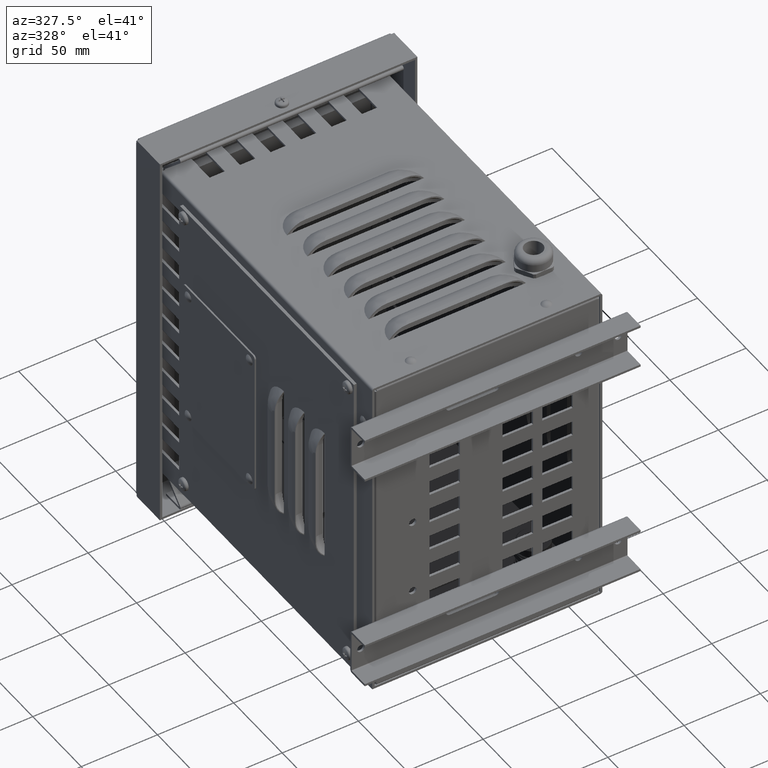
[diagram: clean part render]
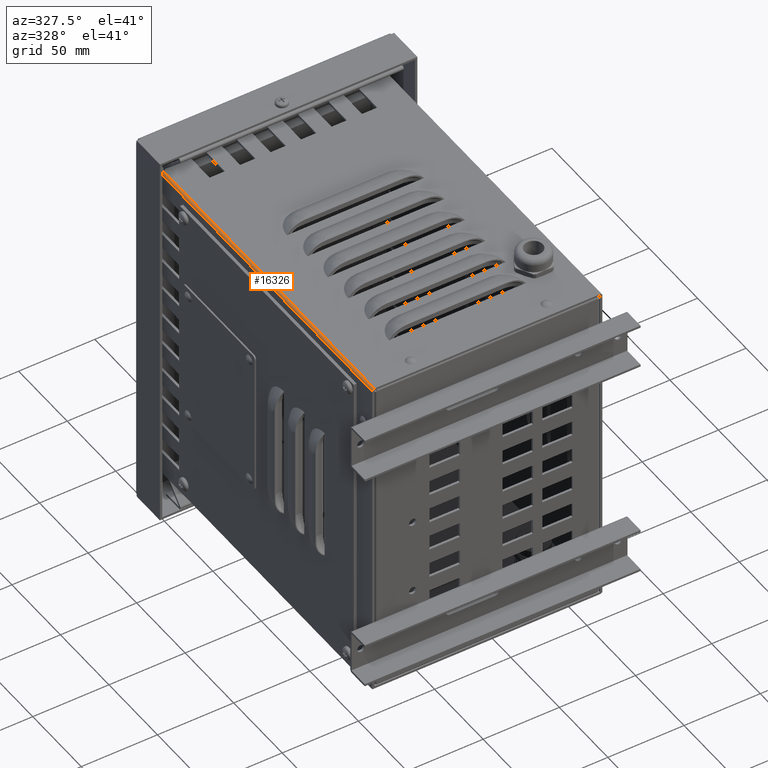
[diagram: same view with one face highlighted and labeled with its STEP entity id]
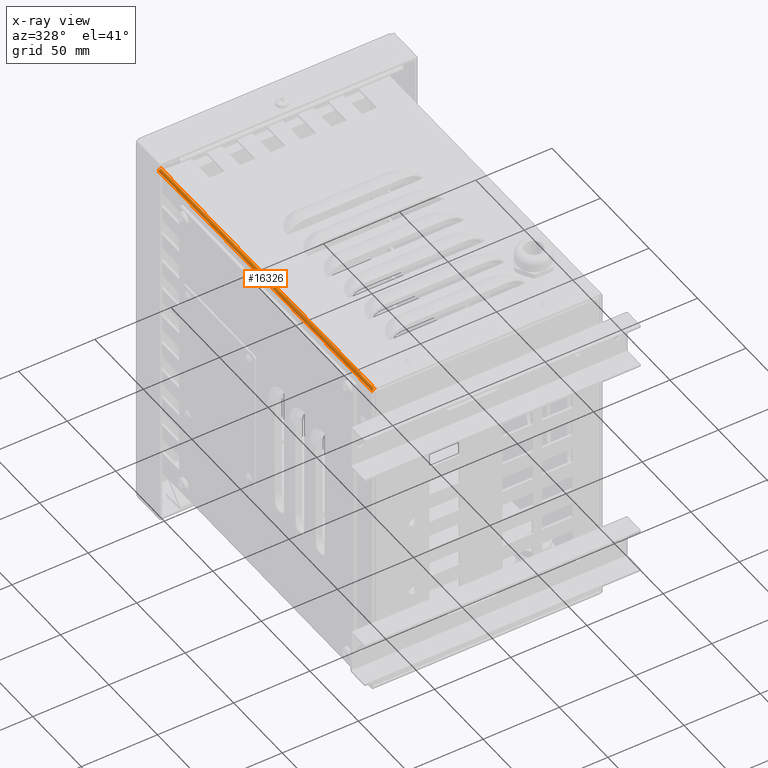
[diagram: x-ray of the same camera — body ghosted, the highlighted face saturated]
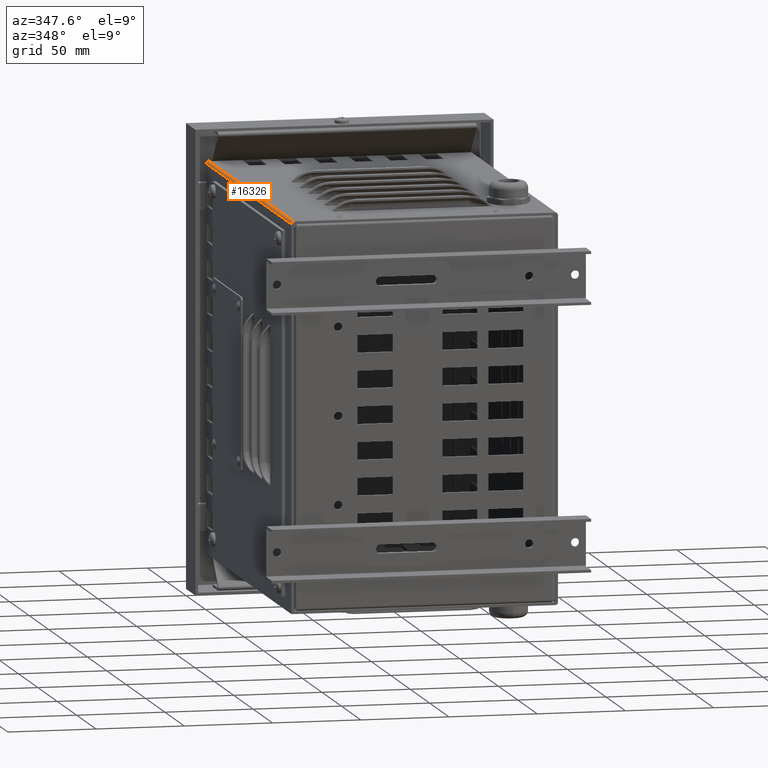
[diagram: same view with one face highlighted and labeled with its STEP entity id]
A machine part, auxiliary view. The second image highlights one B-rep face of the part: STEP entity #16326.
The next image is the same camera in x-ray: the body ghosted, the highlighted face saturated — about 0% of this face is hidden behind the body in this view.
A second angle (auxiliary view) of the same face is appended — the face is thin or edge-on in the first view.
In plain terms, the highlighted cylindrical surface (edge-blend (fillet) strip) has radius 1.501 mm, axis along (0, 1, -0).
Its self-contained STEP definition (entity closure, byte-faithful):
#2346=FACE_OUTER_BOUND('',#3278,.T.);
#3278=EDGE_LOOP('',(#13508,#13509,#13510,#13511,#13512,#13513));
#3908=LINE('',#23013,#5461);
#4696=LINE('',#25823,#6249);
#4697=LINE('',#25826,#6250);
#5461=VECTOR('',#18574,10.);
#6249=VECTOR('',#20724,10.);
#6250=VECTOR('',#20727,10.);
#6955=CIRCLE('',#17019,1.50100000000001);
#6957=CIRCLE('',#17023,1.50100000000001);
#7295=CIRCLE('',#17698,1.50099999999998);
#7633=VERTEX_POINT('',#23010);
#7634=VERTEX_POINT('',#23012);
#7638=VERTEX_POINT('',#23025);
#7641=VERTEX_POINT('',#23035);
#8326=VERTEX_POINT('',#25801);
#8328=VERTEX_POINT('',#25824);
#9055=EDGE_CURVE('',#7634,#7633,#3908,.T.);
#9062=EDGE_CURVE('',#7638,#7634,#6955,.T.);
#9068=EDGE_CURVE('',#7641,#7633,#6957,.T.);
#10183=EDGE_CURVE('',#8326,#7641,#4696,.T.);
#10184=EDGE_CURVE('',#8328,#8326,#7295,.T.);
#10185=EDGE_CURVE('',#7638,#8328,#4697,.T.);
#13508=ORIENTED_EDGE('',*,*,#9055,.T.);
#13509=ORIENTED_EDGE('',*,*,#9068,.F.);
#13510=ORIENTED_EDGE('',*,*,#10183,.F.);
#13511=ORIENTED_EDGE('',*,*,#10184,.F.);
#13512=ORIENTED_EDGE('',*,*,#10185,.F.);
#13513=ORIENTED_EDGE('',*,*,#9062,.T.);
#15784=CYLINDRICAL_SURFACE('',#17697,1.50100000000001);
#16326=ADVANCED_FACE('',(#2346),#15784,.T.);
#17019=AXIS2_PLACEMENT_3D('',#23026,#18585,#18586);
#17023=AXIS2_PLACEMENT_3D('',#23037,#18597,#18598);
#17697=AXIS2_PLACEMENT_3D('',#25822,#20722,#20723);
#17698=AXIS2_PLACEMENT_3D('',#25825,#20725,#20726);
#18574=DIRECTION('',(0.,1.,0.));
#18585=DIRECTION('center_axis',(1.4304522951657E-44,-1.,8.32387224102176E-31));
#18586=DIRECTION('ref_axis',(-1.,0.,0.));
#18597=DIRECTION('center_axis',(0.,1.,0.));
#18598=DIRECTION('ref_axis',(-1.,0.,0.));
#20722=DIRECTION('center_axis',(0.,1.,0.));
#20723=DIRECTION('ref_axis',(-1.,0.,0.));
#20724=DIRECTION('',(0.,1.,0.));
#20725=DIRECTION('center_axis',(0.,-1.,0.));
#20726=DIRECTION('ref_axis',(-5.36250295038806E-15,0.,1.));
#20727=DIRECTION('',(1.74371746585954E-32,-1.,-3.23491557291712E-18));
#23010=CARTESIAN_POINT('',(1.50000000000254,220.,220.000000000003));
#23012=CARTESIAN_POINT('',(1.50000000000254,217.749000000002,220.000000000003));
#23013=CARTESIAN_POINT('',(1.50000000000254,110.,219.999999666889));
#23025=CARTESIAN_POINT('',(1.50099999999998,217.749000000002,220.));
#23026=CARTESIAN_POINT('Origin',(1.501,217.749000000002,218.499));
#23035=CARTESIAN_POINT('',(-2.77555756156289E-16,220.,218.499));
#23037=CARTESIAN_POINT('Origin',(1.501,220.,218.499));
#25801=CARTESIAN_POINT('',(-2.77555756156289E-16,-7.105427357601E-14,218.499));
#25822=CARTESIAN_POINT('Origin',(1.501,110.,218.499));
#25823=CARTESIAN_POINT('',(0.,55.,218.499));
#25824=CARTESIAN_POINT('',(1.50099999999998,0.,220.));
#25825=CARTESIAN_POINT('Origin',(1.501,0.,218.499));
#25826=CARTESIAN_POINT('',(1.50099999999998,110.,220.));